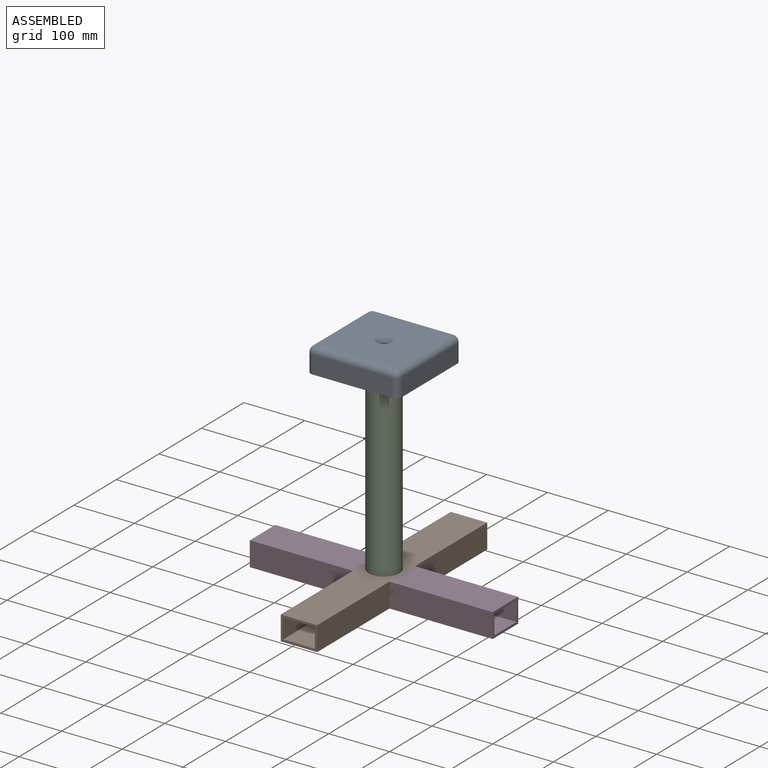
[diagram: assembled view]
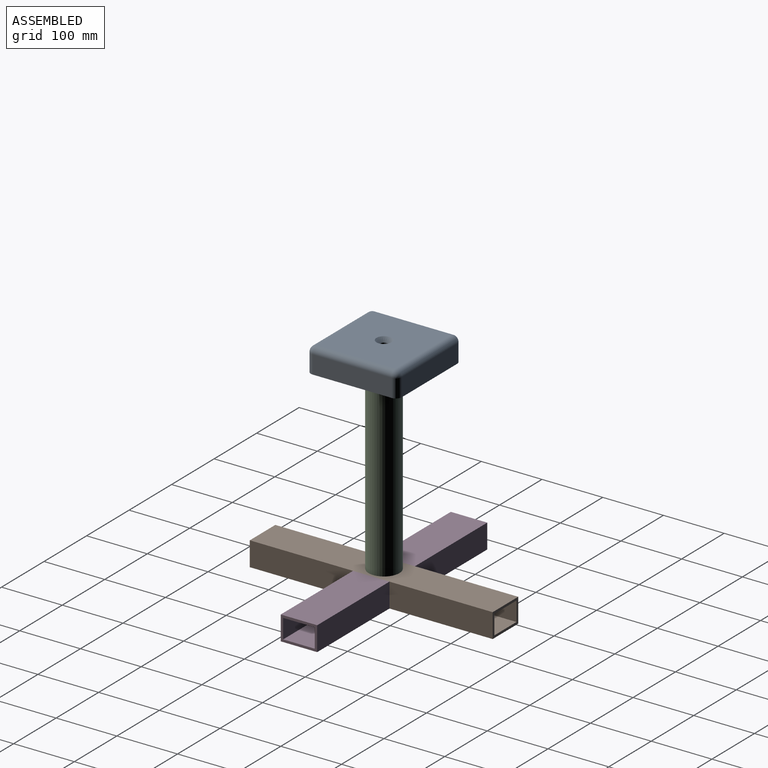
[diagram: assembled view, second angle]
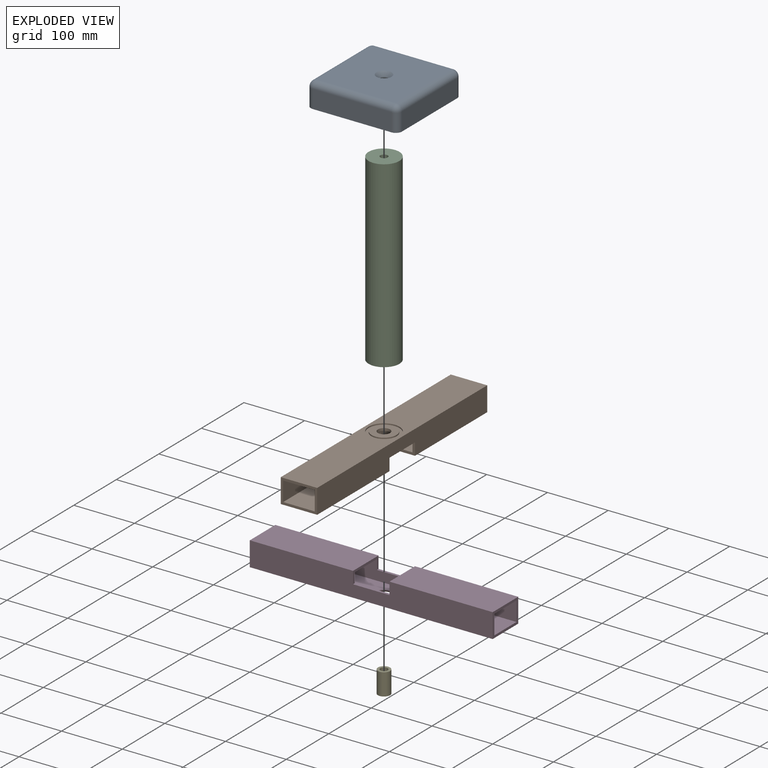
[diagram: exploded view]
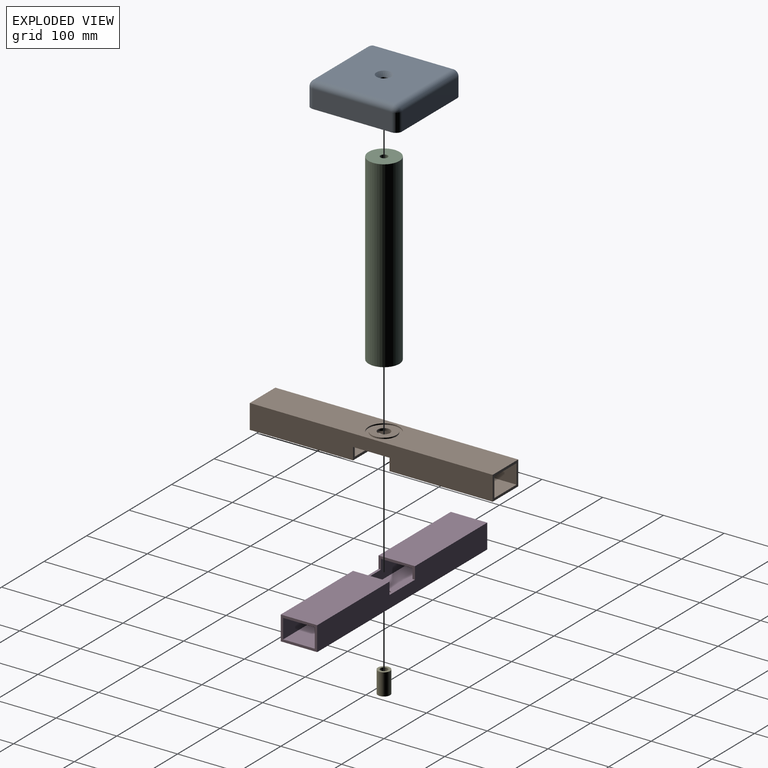
[diagram: exploded view, second angle]
ASSEMBLY  parts=5 mates=4
PART A: 22 faces, bbox 150x150x40 mm
  f0: cylinder r=6mm len=23.5mm, axis (0,0,1), area 885.9mm2, adj f19,f21
  f1: plane 130x30mm, normal (0,-1,0), area 3900mm2, adj f6,f9,f15,f18
  f2: plane 130x30mm, normal (1,0,0), area 3900mm2, adj f6,f12,f16,f18
  f3: plane 130x30mm, normal (0,1,0), area 3900mm2, adj f6,f7,f11,f12
  f4: plane 130x30mm, normal (-1,0,0), area 3900mm2, adj f6,f7,f9,f10
  f5: plane 130x130mm, normal (0,0,1), area 16409.1mm2, adj f10,f11,f15,f16,f19
  f6: plane 150x150mm, normal (0,0,-1), area 20306.7mm2, adj f1,f2,f3,f4,f7,f9,f12,f18
  f7: cylinder r=10mm len=30mm, axis (0,0,1), area 471.2mm2, adj f3,f4,f6,f8
  f8: sphere r=10mm, area 157.1mm2, adj f7,f10,f11
  f9: cylinder r=10mm len=30mm, axis (0,0,-1), area 471.2mm2, adj f1,f4,f6,f13
  f10: cylinder r=10mm len=130mm, axis (0,1,0), area 2042mm2, adj f4,f5,f8,f13
  f11: cylinder r=10mm len=130mm, axis (1,0,0), area 2042mm2, adj f3,f5,f8,f14
  f12: cylinder r=10mm len=30mm, axis (0,0,-1), area 471.2mm2, adj f2,f3,f6,f14
  f13: sphere r=10mm, area 157.1mm2, adj f9,f10,f15
  f14: sphere r=10mm, area 157.1mm2, adj f11,f12,f16
  f15: cylinder r=10mm len=130mm, axis (-1,0,0), area 2042mm2, adj f1,f5,f13,f17
  f16: cylinder r=10mm len=130mm, axis (0,-1,0), area 2042mm2, adj f2,f5,f14,f17
  f17: sphere r=10mm, area 157.1mm2, adj f15,f16,f18
  f18: cylinder r=10mm len=30mm, axis (0,0,1), area 471.2mm2, adj f1,f2,f6,f17
  f19: cone r=6mm half-angle=45deg, axis (0,0,1), area 534.3mm2, adj f0,f5
  f20: cylinder r=25.9mm len=51.8mm, axis (0,0,-1), area 1627.3mm2, adj f6,f21
  f21: plane 51.8x51.8mm, normal (0,0,-1), area 1994.3mm2, adj f0,f20
PART B: 21 faces, bbox 400x60x40 mm
  f0: plane 41.28x41.28mm, normal (0,0,-1), area 1024.2mm2, adj f17,f18
  f1: plane 170x60mm, normal (0,0,1), area 10200mm2, adj f3,f5,f11,f14
  f2: plane 170x52mm, normal (0,0,-1), area 8840mm2, adj f7,f9,f12,f15
  f3: plane 400x40mm, normal (0,-1,0), area 14800mm2, adj f1,f4,f6,f11,f12,f13,f14,f15
  f4: plane 400x60mm, normal (0,0,-1), area 21973.2mm2, adj f3,f5,f11,f12,f19
  f5: plane 400x40mm, normal (0,1,0), area 14800mm2, adj f1,f4,f6,f11,f12,f14,f15,f16
  f6: plane 170x60mm, normal (0,0,1), area 10200mm2, adj f3,f5,f12,f15
  f7: plane 400x32mm, normal (0,-1,0), area 11840mm2, adj f2,f8,f10,f11,f12,f14,f15,f16
  f8: plane 400x52mm, normal (0,0,1), area 20485.8mm2, adj f7,f9,f11,f12,f17
  f9: plane 400x32mm, normal (0,1,0), area 11840mm2, adj f2,f8,f10,f11,f12,f13,f14,f15
  f10: plane 170x52mm, normal (0,0,-1), area 8840mm2, adj f7,f9,f11,f14
  f11: plane 60x40mm, normal (1,0,0), area 736mm2, adj f1,f3,f4,f5,f7,f8,f9,f10
  f12: plane 60x40mm, normal (-1,0,0), area 736mm2, adj f2,f3,f4,f5,f6,f7,f8,f9
  f13: plane 60x4mm, normal (0,0,1), area 240mm2, adj f3,f9,f14,f15
  f14: plane 60x20mm, normal (-1,0,0), area 368mm2, adj f1,f3,f5,f7,f9,f10,f13,f16
  f15: plane 60x20mm, normal (1,0,0), area 368mm2, adj f2,f3,f5,f6,f7,f9,f13,f16
  f16: plane 60x4mm, normal (0,0,1), area 240mm2, adj f5,f7,f14,f15
  f17: cylinder r=10mm len=20mm, axis (0,0,-1), area 251.3mm2, adj f0,f8
  f18: cylinder r=20.64mm len=41.28mm, axis (0,0,-1), area 259.4mm2, adj f0,f20
  f19: cylinder r=25.4mm len=50.8mm, axis (0,0,-1), area 319.2mm2, adj f4,f20
  f20: plane 50.8x50.8mm, normal (0,0,-1), area 688.5mm2, adj f18,f19
PART C: 10 faces, bbox 50.8x50.8x302 mm
  f0: cylinder r=20.64mm len=280mm, axis (0,0,1), area 36311.8mm2, adj f5,f9
  f1: cylinder r=6mm len=12mm, axis (0,0,1), area 377mm2, adj f5,f6
  f2: cylinder r=25.4mm len=302mm, axis (0,0,1), area 48197.1mm2, adj f3,f4
  f3: plane 50.8x50.8mm, normal (0,0,-1), area 1913.7mm2, adj f2,f8
  f4: plane 50.8x50.8mm, normal (0,0,1), area 688.5mm2, adj f2,f7
  f5: plane 41.28x41.28mm, normal (0,0,-1), area 1225.3mm2, adj f0,f1
  f6: plane 41.28x41.28mm, normal (0,0,1), area 1225.3mm2, adj f1,f7
  f7: cylinder r=20.64mm len=41.28mm, axis (0,0,1), area 259.4mm2, adj f4,f6
  f8: cylinder r=6mm len=12mm, axis (0,0,-1), area 377mm2, adj f3,f9
  f9: plane 41.28x41.28mm, normal (0,0,1), area 1225.3mm2, adj f0,f8
PART D: 18 faces, bbox 400x60x40 mm
  f0: plane 170x60mm, normal (0,0,1), area 10200mm2, adj f2,f4,f10,f13
  f1: plane 170x52mm, normal (0,0,-1), area 8840mm2, adj f6,f8,f11,f14
  f2: plane 400x40mm, normal (0,-1,0), area 14800mm2, adj f0,f3,f5,f10,f11,f12,f13,f14
  f3: plane 400x60mm, normal (0,0,-1), area 23509.1mm2, adj f2,f4,f10,f11,f17
  f4: plane 400x40mm, normal (0,1,0), area 14800mm2, adj f0,f3,f5,f10,f11,f13,f14,f15
  f5: plane 170x60mm, normal (0,0,1), area 10200mm2, adj f2,f4,f11,f14
  f6: plane 400x32mm, normal (0,-1,0), area 11840mm2, adj f1,f7,f9,f10,f11,f13,f14,f15
  f7: plane 400x52mm, normal (0,0,1), area 20485.8mm2, adj f6,f8,f10,f11,f16
  f8: plane 400x32mm, normal (0,1,0), area 11840mm2, adj f1,f7,f9,f10,f11,f12,f13,f14
  f9: plane 170x52mm, normal (0,0,-1), area 8840mm2, adj f6,f8,f10,f13
  f10: plane 60x40mm, normal (1,0,0), area 736mm2, adj f0,f2,f3,f4,f6,f7,f8,f9
  f11: plane 60x40mm, normal (-1,0,0), area 736mm2, adj f1,f2,f3,f4,f5,f6,f7,f8
  f12: plane 60x4mm, normal (0,0,1), area 240mm2, adj f2,f8,f13,f14
  f13: plane 60x20mm, normal (-1,0,0), area 368mm2, adj f0,f2,f4,f6,f8,f9,f12,f15
  f14: plane 60x20mm, normal (1,0,0), area 368mm2, adj f1,f2,f4,f5,f6,f8,f12,f15
  f15: plane 60x4mm, normal (0,0,1), area 240mm2, adj f4,f6,f13,f14
  f16: cylinder r=10mm len=20mm, axis (0,0,-1), area 94.2mm2, adj f7,f17
  f17: cone r=10mm half-angle=45deg, axis (0,0,-1), area 249.9mm2, adj f3,f16
PART E: 4 faces, bbox 20x20x36 mm
  f0: cylinder r=10mm len=36mm, axis (0,0,-1), area 2261.9mm2, adj f1,f3
  f1: plane 20x20mm, normal (0,0,-1), area 201.1mm2, adj f0,f2
  f2: cylinder r=6mm len=32mm, axis (0,0,1), area 1206.4mm2, adj f1,f3
  f3: cone r=6mm half-angle=45deg, axis (0,0,1), area 284.3mm2, adj f0,f2
PLACE A t=(-200,30,340)mm
PLACE B rot(axis=(0.71,0.71,0),180deg) t=(-200,30,20)mm
PLACE C rot(axis=(1,0,0),180deg) t=(-200,30,20)mm
PLACE D t=(-200,30,20)mm
PLACE E rot(axis=(0,-1,0),180deg) t=(-200,30,20)mm
MATE fastened D.f3 <-> B.f6  axis (0,0,-1) through (-200,0,0)mm
MATE fastened C.f8 <-> A.f20  axis (0,0,1) through (-200,30,340)mm
MATE fastened B.f17 <-> E.f3  axis (0,0,1) through (-200,30,40)mm
MATE fastened E.f3 <-> C.f1  axis (0,0,-1) through (-200,30,40)mm
